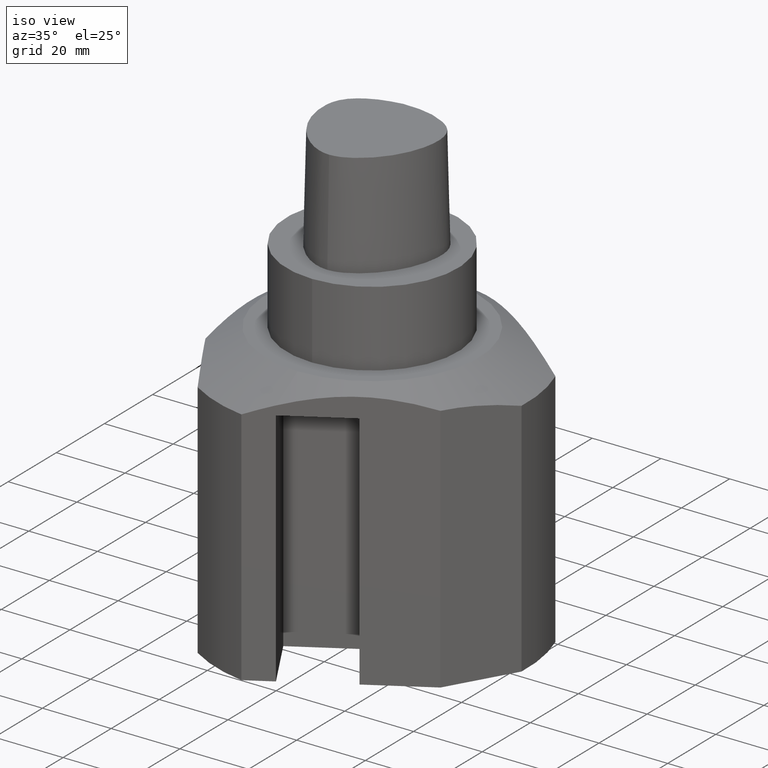
[diagram: clean part render]
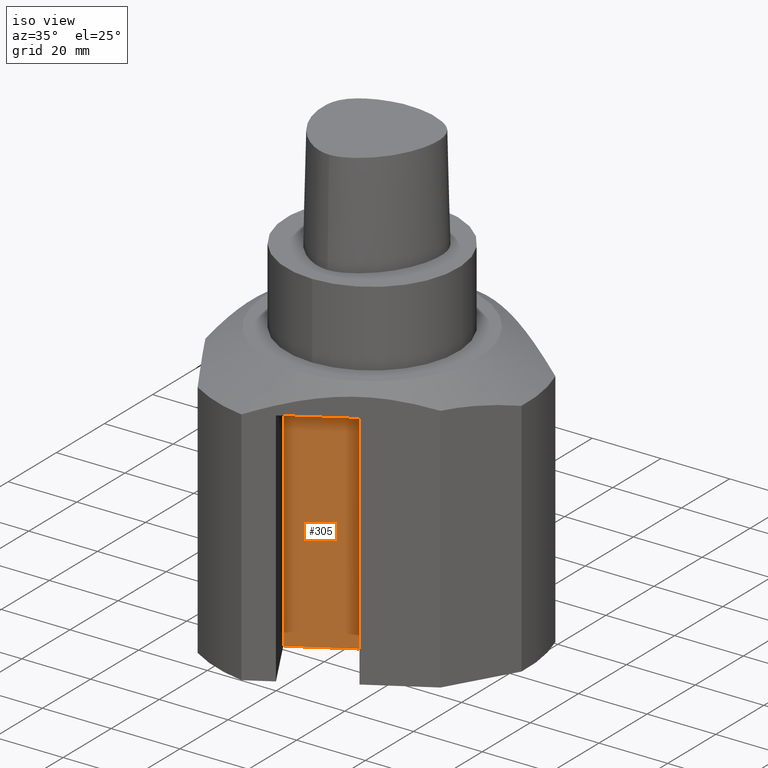
[diagram: same view with one face highlighted and labeled with its STEP entity id]
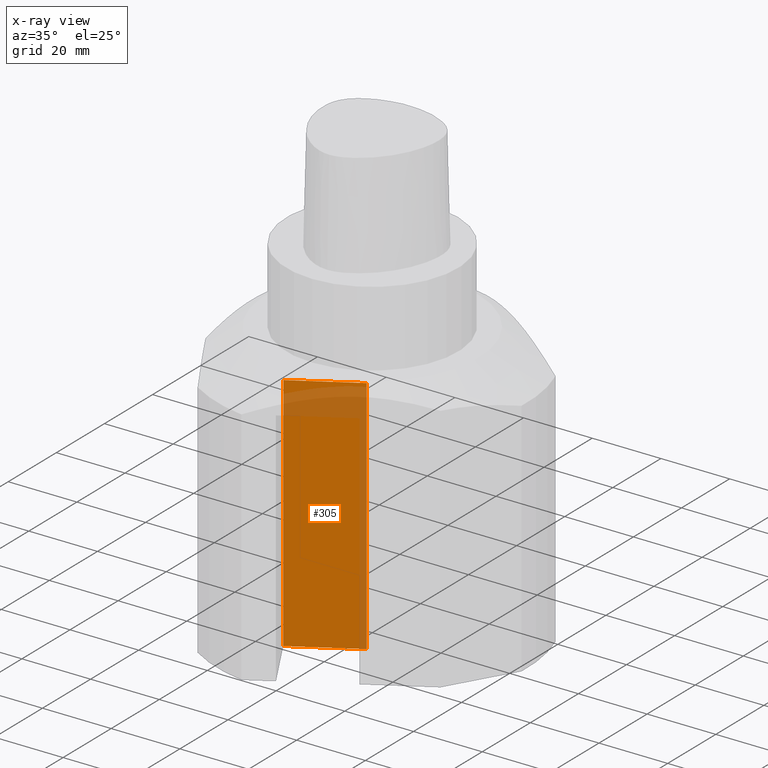
[diagram: x-ray of the same camera — body ghosted, the highlighted face saturated]
A machine part, iso view. The second image highlights one B-rep face of the part: STEP entity #305.
The next image is the same camera in x-ray: the body ghosted, the highlighted face saturated — about 19% of this face is hidden behind the body in this view.
In plain terms, the highlighted planar face has unit normal (-0.5, 0.866, -0).
Its self-contained STEP definition (entity closure, byte-faithful):
#145=EDGE_CURVE('240[2]',#400,#388,#401,.T.);
#247=EDGE_CURVE('240[2]',#400,#403,#546,.T.);
#263=EDGE_CURVE('240[2]',#403,#492,#566,.T.);
#274=EDGE_CURVE('240[2]',#492,#388,#580,.T.);
#305=ADVANCED_FACE('240[2]',(#615),#616,.F.);
#388=VERTEX_POINT('',#706);
#400=VERTEX_POINT('',#724);
#401=LINE('',#725,#726);
#403=VERTEX_POINT('',#729);
#492=VERTEX_POINT('',#927);
#546=LINE('',#1492,#1493);
#566=LINE('',#1538,#1539);
#580=LINE('',#1580,#1581);
#615=FACE_OUTER_BOUND('',#1651,.T.);
#616=PLANE('',#1652);
#706=CARTESIAN_POINT('',(7.50000000000039,-12.9903810567661,-29.9999987706542));
#724=CARTESIAN_POINT('',(7.50000000000041,-12.9903810567661,-99.9999999999999));
#725=CARTESIAN_POINT('',(7.50000000000044,-12.9903810567661,-261.0));
#726=VECTOR('',#1804,1.0);
#729=CARTESIAN_POINT('',(-9.82050807568841,-22.990381056766,-99.9999999999999));
#927=CARTESIAN_POINT('',(-9.8205080756884,-22.990381056766,-29.9999987706541));
#1492=CARTESIAN_POINT('',(-1.26850721331729,-18.0528810567662,-99.9999999999999));
#1493=VECTOR('',#1943,1.0);
#1538=CARTESIAN_POINT('',(-9.82050807568839,-22.990381056766,-261.0));
#1539=VECTOR('',#1969,1.0);
#1580=CARTESIAN_POINT('',(-9.8205080756884,-22.990381056766,-29.9999987706542));
#1581=VECTOR('',#1977,1.0);
#1651=EDGE_LOOP('',(#2020,#2021,#2022,#2023));
#1652=AXIS2_PLACEMENT_3D('',#2024,#2025,#2026);
#1804=DIRECTION('',(-1.36673693851175E-016,-8.20357802112229E-018,1.0));
#1943=DIRECTION('',(-0.86602540378444,-0.499999999999997,1.14261101893613E-016));
#1969=DIRECTION('',(-1.36673693851175E-016,-8.20357802112229E-018,1.0));
#1977=DIRECTION('',(0.86602540378444,0.499999999999997,-2.71970626312567E-015));
#2020=ORIENTED_EDGE('',*,*,#247,.F.);
#2021=ORIENTED_EDGE('',*,*,#145,.T.);
#2022=ORIENTED_EDGE('',*,*,#274,.F.);
#2023=ORIENTED_EDGE('',*,*,#263,.F.);
#2024=CARTESIAN_POINT('',(-1.16025403784396,-17.990381056766,-261.0));
#2025=DIRECTION('',(-0.499999999999997,0.86602540378444,-6.12323399573674E-017));
#2026=DIRECTION('',(-1.22464679914736E-016,0.0,1.0));